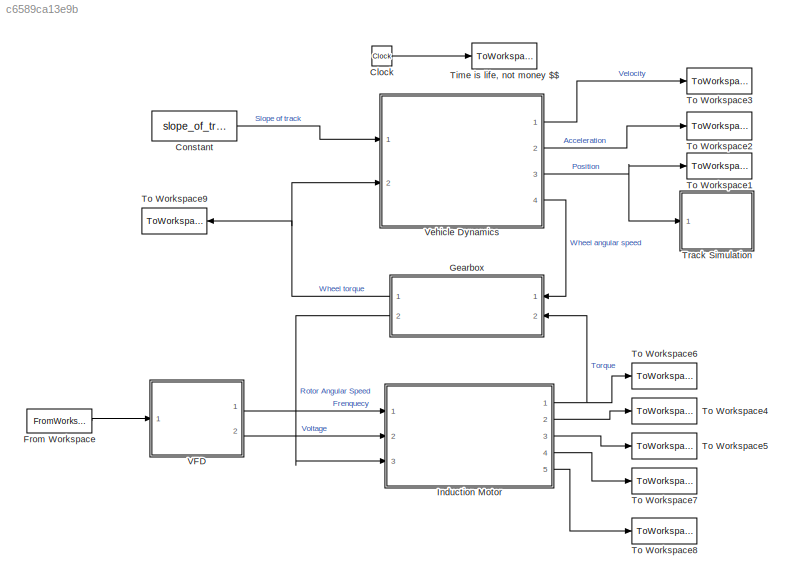
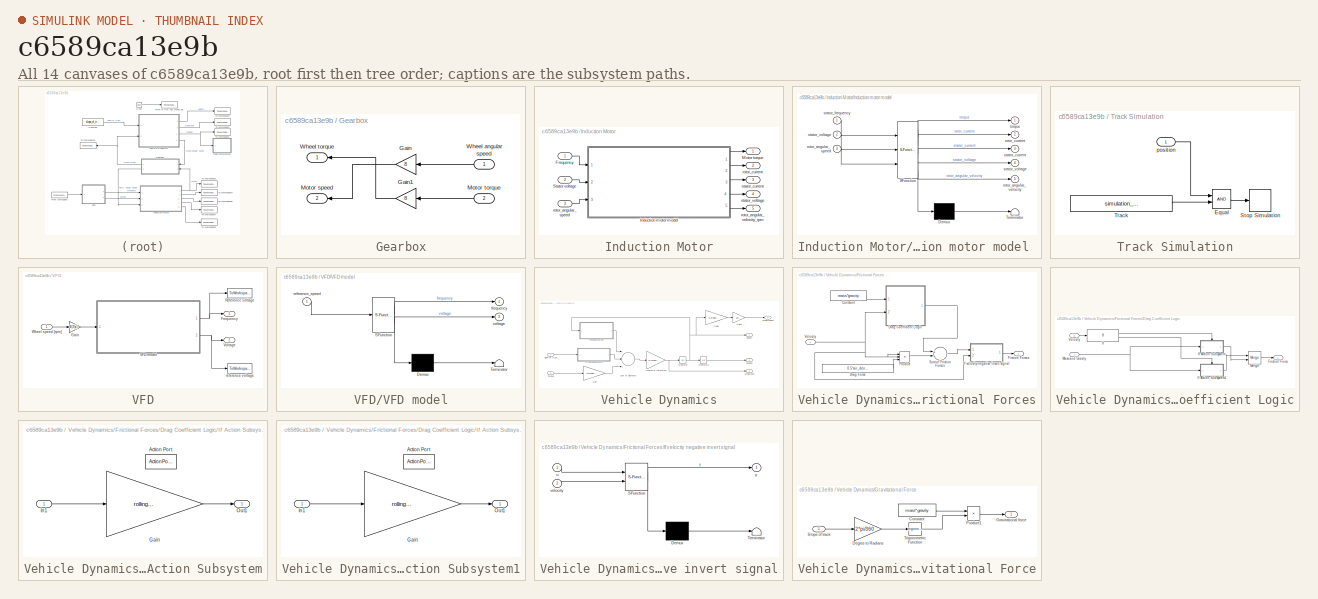
[diagram: thumbnail index - all 14 canvases of the model, root first then tree order]
MODEL slx_c6589ca13e9b
KIND model
CONFIG AbsTol = auto
CONFIG EnableMultiTasking = off
CONFIG FixedStep = auto
CONFIG MaxStep = 1e-4
CONFIG MinStep = auto
CONFIG RelTol = 1e-4
CONFIG SampleTimeConstraint = Unconstrained
CONFIG Solver = ode23t
CONFIG SolverName = ode23t
CONFIG StartTime = 0.0
CONFIG StopTime = 100
BLOCK [Clock] Clock
BLOCK [Constant] Constant
  Value = slope_of_track
BLOCK [FromWorkspace] From Workspace
  SampleTime = 0
  VariableName = reference_speed
  ZeroCross = on
BLOCK [SubSystem] Gearbox
  Ports = [2, 2]
  RequestExecContextInheritance = off
BLOCK [Gain] Gearbox/Gain
  Gain = 8
  OutDataTypeStr = Inherit: Inherit via internal rule
  ParamDataTypeStr = Inherit: Inherit via internal rule
  SaturateOnIntegerOverflow = off
BLOCK [Gain] Gearbox/Gain1
  Gain = 8
  OutDataTypeStr = Inherit: Inherit via internal rule
  ParamDataTypeStr = Inherit: Inherit via internal rule
  SaturateOnIntegerOverflow = off
BLOCK [Outport] Gearbox/Motor speed
  IconDisplay = Port number
  Port = 2
BLOCK [Inport] Gearbox/Motor torque
  IconDisplay = Port number
  Port = 2
BLOCK [Inport] Gearbox/Wheel angular speed
  IconDisplay = Port number
BLOCK [Outport] Gearbox/Wheel torque 
  IconDisplay = Port number
BLOCK [SubSystem] Induction Motor
  Ports = [3, 5]
  RequestExecContextInheritance = off
BLOCK [Inport] Induction Motor/Frequency 
  IconDisplay = Port number
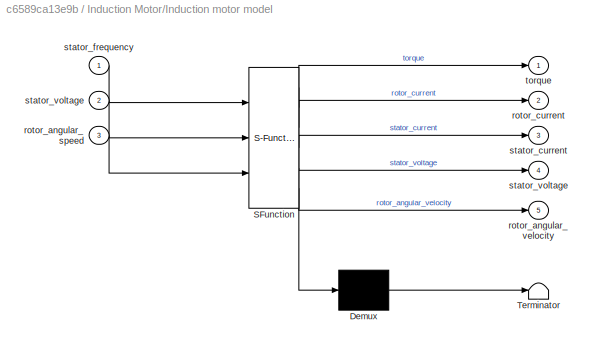
BLOCK [SubSystem] Induction Motor/Induction motor model 
  ErrorFcn = Stateflow.Translate.translate
  PermitHierarchicalResolution = ExplicitOnly
  Ports = [3, 5]
  RequestExecContextInheritance = off
  SFBlockType = MATLAB Function
  TreatAsAtomicUnit = on
BLOCK [Demux] Induction Motor/Induction motor model / Demux 
  Outputs = 1
  Ports = [1, 1]
BLOCK [S-Function] Induction Motor/Induction motor model / SFunction 
  EnableBusSupport = on
  FunctionName = sf_sfun
  PortCounts = [3 6]
  Ports = [3, 6]
  SFcnIsStateOwnerBlock = off
  SFunctionDeploymentMode = off
  Tag = Stateflow S-Function 2
BLOCK [Terminator] Induction Motor/Induction motor model / Terminator 
BLOCK [Inport] Induction Motor/Induction motor model /rotor_angular_speed
  IconDisplay = Port number
  Port = 3
BLOCK [Outport] Induction Motor/Induction motor model /rotor_angular_velocity
  IconDisplay = Port number
  Port = 5
BLOCK [Outport] Induction Motor/Induction motor model /rotor_current
  IconDisplay = Port number
  Port = 2
BLOCK [Outport] Induction Motor/Induction motor model /stator_current
  IconDisplay = Port number
  Port = 3
BLOCK [Inport] Induction Motor/Induction motor model /stator_frequency
  IconDisplay = Port number
BLOCK [Outport] Induction Motor/Induction motor model /stator_voltage
  IconDisplay = Port number
  Port = 4
BLOCK [Inport] Induction Motor/Induction motor model /stator_voltage 
  IconDisplay = Port number
  Port = 2
BLOCK [Outport] Induction Motor/Induction motor model /torque
  IconDisplay = Port number
BLOCK [Outport] Induction Motor/Motor torque
  IconDisplay = Port number
BLOCK [Inport] Induction Motor/Stator voltage 
  IconDisplay = Port number
  Port = 2
BLOCK [Inport] Induction Motor/rotor_angular_speed 
  IconDisplay = Port number
  Port = 3
BLOCK [Outport] Induction Motor/rotor_angular_velocity_rpm
  IconDisplay = Port number
  Port = 5
BLOCK [Outport] Induction Motor/rotor_current
  IconDisplay = Port number
  Port = 2
BLOCK [Outport] Induction Motor/stator_current
  IconDisplay = Port number
  Port = 3
BLOCK [Outport] Induction Motor/stator_voltage
  IconDisplay = Port number
  Port = 4
BLOCK [ToWorkspace] Time is life, not money $$
  FixptAsFi = on
  MaxDataPoints = inf
  Ports = [1]
  SampleTime = -1
  VariableName = time
BLOCK [ToWorkspace] To Workspace1
  FixptAsFi = on
  MaxDataPoints = inf
  Ports = [1]
  SampleTime = -1
  VariableName = position
BLOCK [ToWorkspace] To Workspace2
  FixptAsFi = on
  MaxDataPoints = inf
  Ports = [1]
  SampleTime = -1
  VariableName = acceleration
BLOCK [ToWorkspace] To Workspace3
  FixptAsFi = on
  MaxDataPoints = inf
  Ports = [1]
  SampleTime = -1
  VariableName = velocity
BLOCK [ToWorkspace] To Workspace4
  FixptAsFi = on
  MaxDataPoints = inf
  Ports = [1]
  SampleTime = -1
  VariableName = rotor_current
BLOCK [ToWorkspace] To Workspace5
  FixptAsFi = on
  MaxDataPoints = inf
  Ports = [1]
  SampleTime = -1
  VariableName = stator_current
BLOCK [ToWorkspace] To Workspace6
  FixptAsFi = on
  MaxDataPoints = inf
  Ports = [1]
  SampleTime = -1
  VariableName = motor_torque
BLOCK [ToWorkspace] To Workspace7
  FixptAsFi = on
  MaxDataPoints = inf
  Ports = [1]
  SampleTime = -1
  VariableName = stator_voltage
BLOCK [ToWorkspace] To Workspace8
  FixptAsFi = on
  MaxDataPoints = inf
  Ports = [1]
  SampleTime = -1
  VariableName = rotor_angular_velocity
BLOCK [ToWorkspace] To Workspace9
  FixptAsFi = on
  MaxDataPoints = inf
  Ports = [1]
  SampleTime = -1
  VariableName = wheel_torque
BLOCK [SubSystem] Track Simulation
  Ports = [1]
  RequestExecContextInheritance = off
BLOCK [RelationalOperator] Track Simulation/Equal
  InputSameDT = off
  OutDataTypeStr = boolean
  Ports = [2, 1]
  RndMeth = Simplest
BLOCK [Stop] Track Simulation/Stop Simulation
BLOCK [Constant] Track Simulation/Track 
  Value = simulation_length_track
BLOCK [Inport] Track Simulation/position
  IconDisplay = Port number
BLOCK [SubSystem] VFD
  Ports = [1, 2]
  RequestExecContextInheritance = off
BLOCK [Outport] VFD/Frequency
  IconDisplay = Port number
BLOCK [Gain] VFD/Gain
  Gain = 8/(2*pi)
  OutDataTypeStr = Inherit: Inherit via internal rule
  ParamDataTypeStr = Inherit: Inherit via internal rule
  SaturateOnIntegerOverflow = off
BLOCK [ToWorkspace] VFD/Reference voltage
  FixptAsFi = on
  MaxDataPoints = inf
  Ports = [1]
  SampleTime = -1
  VariableName = reference_frequency
BLOCK [SubSystem] VFD/VFD model
  ErrorFcn = Stateflow.Translate.translate
  PermitHierarchicalResolution = ExplicitOnly
  Ports = [1, 2]
  RequestExecContextInheritance = off
  SFBlockType = MATLAB Function
  TreatAsAtomicUnit = on
BLOCK [Demux] VFD/VFD model/ Demux 
  Outputs = 1
  Ports = [1, 1]
BLOCK [S-Function] VFD/VFD model/ SFunction 
  EnableBusSupport = on
  FunctionName = sf_sfun
  PortCounts = [1 3]
  Ports = [1, 3]
  SFcnIsStateOwnerBlock = off
  SFunctionDeploymentMode = off
  Tag = Stateflow S-Function 1
BLOCK [Terminator] VFD/VFD model/ Terminator 
BLOCK [Outport] VFD/VFD model/frequency
  IconDisplay = Port number
BLOCK [Inport] VFD/VFD model/reference_speed
  IconDisplay = Port number
BLOCK [Outport] VFD/VFD model/voltage
  IconDisplay = Port number
  Port = 2
BLOCK [Outport] VFD/Voltage
  IconDisplay = Port number
  Port = 2
BLOCK [Inport] VFD/Wheel speed [rpm]
  IconDisplay = Port number
BLOCK [ToWorkspace] VFD/reference voltage
  FixptAsFi = on
  MaxDataPoints = inf
  Ports = [1]
  SampleTime = -1
  VariableName = reference_voltage
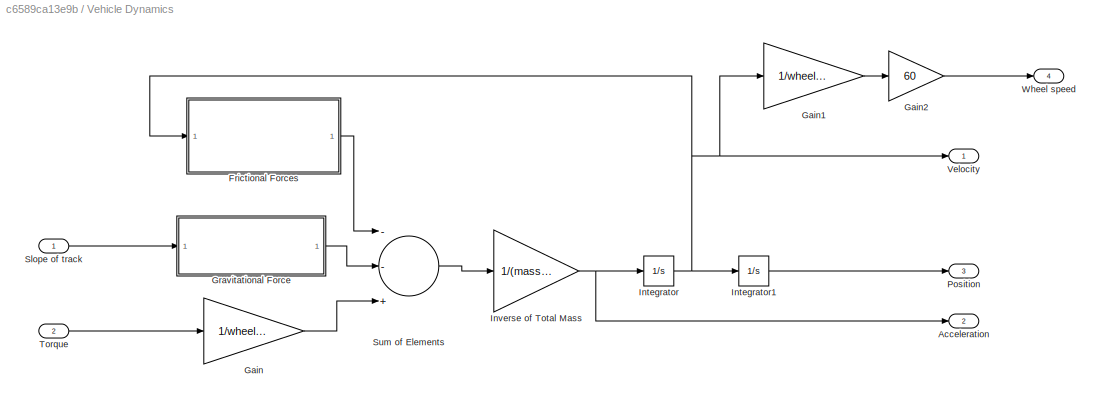
BLOCK [SubSystem] Vehicle Dynamics
  Ports = [2, 4]
  RequestExecContextInheritance = off
BLOCK [Outport] Vehicle Dynamics/Acceleration
  IconDisplay = Port number
  Port = 2
BLOCK [SubSystem] Vehicle Dynamics/Frictional Forces
  Ports = [1, 1]
  RequestExecContextInheritance = off
BLOCK [Constant] Vehicle Dynamics/Frictional Forces/Constant
  Value = mass*gravity
BLOCK [SubSystem] Vehicle Dynamics/Frictional Forces/Drag Coefficient Logic
  Ports = [2, 1]
  RequestExecContextInheritance = off
BLOCK [Outport] Vehicle Dynamics/Frictional Forces/Drag Coefficient Logic/Friction Force
  IconDisplay = Port number
BLOCK [If] Vehicle Dynamics/Frictional Forces/Drag Coefficient Logic/If
  IfExpression = u1 > 0.1
  Ports = [1, 2]
BLOCK [SubSystem] Vehicle Dynamics/Frictional Forces/Drag Coefficient Logic/If Action Subsystem
  Ports = [1, 1, 0, 0, 0, 0, 0, 1]
  RequestExecContextInheritance = off
  TreatAsAtomicUnit = on
BLOCK [ActionPort] Vehicle Dynamics/Frictional Forces/Drag Coefficient Logic/If Action Subsystem/Action Port
  ActionPortLabel = if(u1 > 0.1)
BLOCK [Gain] Vehicle Dynamics/Frictional Forces/Drag Coefficient Logic/If Action Subsystem/Gain
  Gain = rolling_resistance_coefficient_1
  OutDataTypeStr = Inherit: Inherit via internal rule
  ParamDataTypeStr = Inherit: Inherit via internal rule
  SaturateOnIntegerOverflow = off
BLOCK [Inport] Vehicle Dynamics/Frictional Forces/Drag Coefficient Logic/If Action Subsystem/In1
  IconDisplay = Port number
BLOCK [Outport] Vehicle Dynamics/Frictional Forces/Drag Coefficient Logic/If Action Subsystem/Out1
  IconDisplay = Port number
BLOCK [SubSystem] Vehicle Dynamics/Frictional Forces/Drag Coefficient Logic/If Action Subsystem1
  Ports = [1, 1, 0, 0, 0, 0, 0, 1]
  RequestExecContextInheritance = off
  TreatAsAtomicUnit = on
BLOCK [ActionPort] Vehicle Dynamics/Frictional Forces/Drag Coefficient Logic/If Action Subsystem1/Action Port
  ActionPortLabel = else
BLOCK [Gain] Vehicle Dynamics/Frictional Forces/Drag Coefficient Logic/If Action Subsystem1/Gain
  Gain = rolling_resistance_coefficient_0
  OutDataTypeStr = Inherit: Inherit via internal rule
  ParamDataTypeStr = Inherit: Inherit via internal rule
  SaturateOnIntegerOverflow = off
BLOCK [Inport] Vehicle Dynamics/Frictional Forces/Drag Coefficient Logic/If Action Subsystem1/In1
  IconDisplay = Port number
BLOCK [Outport] Vehicle Dynamics/Frictional Forces/Drag Coefficient Logic/If Action Subsystem1/Out1
  IconDisplay = Port number
BLOCK [Inport] Vehicle Dynamics/Frictional Forces/Drag Coefficient Logic/Mass and Gravity 
  IconDisplay = Port number
BLOCK [Merge] Vehicle Dynamics/Frictional Forces/Drag Coefficient Logic/Merge
  Ports = [2, 1]
BLOCK [Inport] Vehicle Dynamics/Frictional Forces/Drag Coefficient Logic/Velocity
  IconDisplay = Port number
  Port = 2
BLOCK [Constant] Vehicle Dynamics/Frictional Forces/Drag Force
  Value = 0.5*air_density*surface_area*drag_coefficient
BLOCK [Outport] Vehicle Dynamics/Frictional Forces/Firction Forces
  IconDisplay = Port number
BLOCK [SubSystem] Vehicle Dynamics/Frictional Forces/If velocity negative invert signal
  ErrorFcn = Stateflow.Translate.translate
  PermitHierarchicalResolution = ExplicitOnly
  Ports = [2, 1]
  RequestExecContextInheritance = off
  SFBlockType = MATLAB Function
  TreatAsAtomicUnit = on
BLOCK [Demux] Vehicle Dynamics/Frictional Forces/If velocity negative invert signal/ Demux 
  Outputs = 1
  Ports = [1, 1]
BLOCK [S-Function] Vehicle Dynamics/Frictional Forces/If velocity negative invert signal/ SFunction 
  EnableBusSupport = on
  FunctionName = sf_sfun
  PortCounts = [2 2]
  Ports = [2, 2]
  SFcnIsStateOwnerBlock = off
  SFunctionDeploymentMode = off
  Tag = Stateflow S-Function 3
BLOCK [Terminator] Vehicle Dynamics/Frictional Forces/If velocity negative invert signal/ Terminator 
BLOCK [Inport] Vehicle Dynamics/Frictional Forces/If velocity negative invert signal/u
  IconDisplay = Port number
BLOCK [Inport] Vehicle Dynamics/Frictional Forces/If velocity negative invert signal/velocity
  IconDisplay = Port number
  Port = 2
BLOCK [Outport] Vehicle Dynamics/Frictional Forces/If velocity negative invert signal/y
  IconDisplay = Port number
BLOCK [Product] Vehicle Dynamics/Frictional Forces/Product
  InputSameDT = off
  Inputs = 3
  OutDataTypeStr = Inherit: Inherit via internal rule
  Ports = [3, 1]
  RndMeth = Floor
  SaturateOnIntegerOverflow = off
BLOCK [Sum] Vehicle Dynamics/Frictional Forces/Sum of Friction Forces
  InputSameDT = off
  OutDataTypeStr = Inherit: Inherit via internal rule
  Ports = [2, 1]
  SaturateOnIntegerOverflow = off
BLOCK [Inport] Vehicle Dynamics/Frictional Forces/Velocity
  IconDisplay = Port number
BLOCK [Gain] Vehicle Dynamics/Gain
  Gain = 1/wheel_radius
  OutDataTypeStr = Inherit: Inherit via internal rule
  ParamDataTypeStr = Inherit: Inherit via internal rule
  SaturateOnIntegerOverflow = off
BLOCK [Gain] Vehicle Dynamics/Gain1
  Gain = 1/wheel_radius
  OutDataTypeStr = Inherit: Inherit via internal rule
  ParamDataTypeStr = Inherit: Inherit via internal rule
  SaturateOnIntegerOverflow = off
BLOCK [Gain] Vehicle Dynamics/Gain2
  Gain = 60
  OutDataTypeStr = Inherit: Inherit via internal rule
  ParamDataTypeStr = Inherit: Inherit via internal rule
  SaturateOnIntegerOverflow = off
BLOCK [SubSystem] Vehicle Dynamics/Gravitational Force
  Ports = [1, 1]
  RequestExecContextInheritance = off
BLOCK [Constant] Vehicle Dynamics/Gravitational Force/Constant
  Value = mass*gravity
BLOCK [Gain] Vehicle Dynamics/Gravitational Force/Degree to Radians
  Gain = 2*pi/360
  OutDataTypeStr = Inherit: Inherit via internal rule
  ParamDataTypeStr = Inherit: Inherit via internal rule
  SaturateOnIntegerOverflow = off
BLOCK [Outport] Vehicle Dynamics/Gravitational Force/Gravitational force
  IconDisplay = Port number
BLOCK [Product] Vehicle Dynamics/Gravitational Force/Product1
  InputSameDT = off
  OutDataTypeStr = Inherit: Inherit via internal rule
  Ports = [2, 1]
  RndMeth = Floor
  SaturateOnIntegerOverflow = off
BLOCK [Inport] Vehicle Dynamics/Gravitational Force/Slope of track
  IconDisplay = Port number
BLOCK [Trigonometry] Vehicle Dynamics/Gravitational Force/Trigonometric Function
  Ports = [1, 1]
BLOCK [Integrator] Vehicle Dynamics/Integrator
  Ports = [1, 1]
BLOCK [Integrator] Vehicle Dynamics/Integrator1
  Ports = [1, 1]
BLOCK [Gain] Vehicle Dynamics/Inverse of Total Mass
  Gain = 1/(mass+equ_mass_of_rot_parts)
  OutDataTypeStr = Inherit: Inherit via internal rule
  ParamDataTypeStr = Inherit: Inherit via internal rule
  SaturateOnIntegerOverflow = off
BLOCK [Outport] Vehicle Dynamics/Position
  IconDisplay = Port number
  Port = 3
BLOCK [Inport] Vehicle Dynamics/Slope of track 
  IconDisplay = Port number
BLOCK [Sum] Vehicle Dynamics/Sum of Elements
  InputSameDT = off
  Inputs = --+
  OutDataTypeStr = Inherit: Inherit via internal rule
  Ports = [3, 1]
  SaturateOnIntegerOverflow = off
BLOCK [Inport] Vehicle Dynamics/Torque
  IconDisplay = Port number
  Port = 2
BLOCK [Outport] Vehicle Dynamics/Velocity
  IconDisplay = Port number
BLOCK [Outport] Vehicle Dynamics/Wheel speed
  IconDisplay = Port number
  Port = 4
LINE Clock:1 -> Time is life, not money $$:1
LINE Constant:1 -> Vehicle Dynamics:1
LINE From Workspace:1 -> VFD:1
LINE Gearbox/Gain1:1 -> Gearbox/Wheel torque :1
LINE Gearbox/Gain:1 -> Gearbox/Motor speed:1
LINE Gearbox/Motor torque:1 -> Gearbox/Gain1:1
LINE Gearbox/Wheel angular speed:1 -> Gearbox/Gain:1
NET Gearbox:1 -> To Workspace9:1, Vehicle Dynamics:2
LINE Gearbox:2 -> Induction Motor:3
LINE Induction Motor/Frequency :1 -> Induction Motor/Induction motor model :1
LINE Induction Motor/Induction motor model :1 -> Induction Motor/Motor torque:1
LINE Induction Motor/Induction motor model :2 -> Induction Motor/rotor_current:1
LINE Induction Motor/Induction motor model :3 -> Induction Motor/stator_current:1
LINE Induction Motor/Induction motor model :4 -> Induction Motor/stator_voltage:1
LINE Induction Motor/Induction motor model :5 -> Induction Motor/rotor_angular_velocity_rpm:1
LINE Induction Motor/Stator voltage :1 -> Induction Motor/Induction motor model :2
LINE Induction Motor/rotor_angular_speed :1 -> Induction Motor/Induction motor model :3
NET Induction Motor:1 -> Gearbox:2, To Workspace6:1
LINE Induction Motor:2 -> To Workspace4:1
LINE Induction Motor:3 -> To Workspace5:1
LINE Induction Motor:4 -> To Workspace7:1
LINE Induction Motor:5 -> To Workspace8:1
LINE Track Simulation/Equal:1 -> Track Simulation/Stop Simulation:1
LINE Track Simulation/Track :1 -> Track Simulation/Equal:2
LINE Track Simulation/position:1 -> Track Simulation/Equal:1
LINE VFD/Gain:1 -> VFD/VFD model:1
NET VFD/VFD model:1 -> VFD/Frequency:1, VFD/Reference voltage:1
NET VFD/VFD model:2 -> VFD/Voltage:1, VFD/reference voltage:1
LINE VFD/Wheel speed [rpm]:1 -> VFD/Gain:1
LINE VFD:1 -> Induction Motor:1
LINE VFD:2 -> Induction Motor:2
LINE Vehicle Dynamics/Frictional Forces/Constant:1 -> Vehicle Dynamics/Frictional Forces/Drag Coefficient Logic:1
LINE Vehicle Dynamics/Frictional Forces/Drag Coefficient Logic/If Action Subsystem/Gain:1 -> Vehicle Dynamics/Frictional Forces/Drag Coefficient Logic/If Action Subsystem/Out1:1
LINE Vehicle Dynamics/Frictional Forces/Drag Coefficient Logic/If Action Subsystem/In1:1 -> Vehicle Dynamics/Frictional Forces/Drag Coefficient Logic/If Action Subsystem/Gain:1
LINE Vehicle Dynamics/Frictional Forces/Drag Coefficient Logic/If Action Subsystem1/Gain:1 -> Vehicle Dynamics/Frictional Forces/Drag Coefficient Logic/If Action Subsystem1/Out1:1
LINE Vehicle Dynamics/Frictional Forces/Drag Coefficient Logic/If Action Subsystem1/In1:1 -> Vehicle Dynamics/Frictional Forces/Drag Coefficient Logic/If Action Subsystem1/Gain:1
LINE Vehicle Dynamics/Frictional Forces/Drag Coefficient Logic/If Action Subsystem1:1 -> Vehicle Dynamics/Frictional Forces/Drag Coefficient Logic/Merge:1
LINE Vehicle Dynamics/Frictional Forces/Drag Coefficient Logic/If Action Subsystem:1 -> Vehicle Dynamics/Frictional Forces/Drag Coefficient Logic/Merge:2
LINE Vehicle Dynamics/Frictional Forces/Drag Coefficient Logic/If:1 -> Vehicle Dynamics/Frictional Forces/Drag Coefficient Logic/If Action Subsystem:ifaction
LINE Vehicle Dynamics/Frictional Forces/Drag Coefficient Logic/If:2 -> Vehicle Dynamics/Frictional Forces/Drag Coefficient Logic/If Action Subsystem1:ifaction
NET Vehicle Dynamics/Frictional Forces/Drag Coefficient Logic/Mass and Gravity :1 -> Vehicle Dynamics/Frictional Forces/Drag Coefficient Logic/If Action Subsystem1:1, Vehicle Dynamics/Frictional Forces/Drag Coefficient Logic/If Action Subsystem:1
LINE Vehicle Dynamics/Frictional Forces/Drag Coefficient Logic/Merge:1 -> Vehicle Dynamics/Frictional Forces/Drag Coefficient Logic/Friction Force:1
LINE Vehicle Dynamics/Frictional Forces/Drag Coefficient Logic/Velocity:1 -> Vehicle Dynamics/Frictional Forces/Drag Coefficient Logic/If:1
LINE Vehicle Dynamics/Frictional Forces/Drag Coefficient Logic:1 -> Vehicle Dynamics/Frictional Forces/Sum of Friction Forces:1
LINE Vehicle Dynamics/Frictional Forces/Drag Force:1 -> Vehicle Dynamics/Frictional Forces/Product:3
LINE Vehicle Dynamics/Frictional Forces/If velocity negative invert signal:1 -> Vehicle Dynamics/Frictional Forces/Firction Forces:1
LINE Vehicle Dynamics/Frictional Forces/Product:1 -> Vehicle Dynamics/Frictional Forces/Sum of Friction Forces:2
LINE Vehicle Dynamics/Frictional Forces/Sum of Friction Forces:1 -> Vehicle Dynamics/Frictional Forces/If velocity negative invert signal:1
NET Vehicle Dynamics/Frictional Forces/Velocity:1 -> Vehicle Dynamics/Frictional Forces/Drag Coefficient Logic:2, Vehicle Dynamics/Frictional Forces/If velocity negative invert signal:2, Vehicle Dynamics/Frictional Forces/Product:1, Vehicle Dynamics/Frictional Forces/Product:2
LINE Vehicle Dynamics/Frictional Forces:1 -> Vehicle Dynamics/Sum of Elements:1
LINE Vehicle Dynamics/Gain1:1 -> Vehicle Dynamics/Gain2:1
LINE Vehicle Dynamics/Gain2:1 -> Vehicle Dynamics/Wheel speed:1
LINE Vehicle Dynamics/Gain:1 -> Vehicle Dynamics/Sum of Elements:3
LINE Vehicle Dynamics/Gravitational Force/Constant:1 -> Vehicle Dynamics/Gravitational Force/Product1:1
LINE Vehicle Dynamics/Gravitational Force/Degree to Radians:1 -> Vehicle Dynamics/Gravitational Force/Trigonometric Function:1
LINE Vehicle Dynamics/Gravitational Force/Product1:1 -> Vehicle Dynamics/Gravitational Force/Gravitational force:1
LINE Vehicle Dynamics/Gravitational Force/Slope of track:1 -> Vehicle Dynamics/Gravitational Force/Degree to Radians:1
LINE Vehicle Dynamics/Gravitational Force/Trigonometric Function:1 -> Vehicle Dynamics/Gravitational Force/Product1:2
LINE Vehicle Dynamics/Gravitational Force:1 -> Vehicle Dynamics/Sum of Elements:2
LINE Vehicle Dynamics/Integrator1:1 -> Vehicle Dynamics/Position:1
NET Vehicle Dynamics/Integrator:1 -> Vehicle Dynamics/Frictional Forces:1, Vehicle Dynamics/Gain1:1, Vehicle Dynamics/Integrator1:1, Vehicle Dynamics/Velocity:1
NET Vehicle Dynamics/Inverse of Total Mass:1 -> Vehicle Dynamics/Acceleration:1, Vehicle Dynamics/Integrator:1
LINE Vehicle Dynamics/Slope of track :1 -> Vehicle Dynamics/Gravitational Force:1
LINE Vehicle Dynamics/Sum of Elements:1 -> Vehicle Dynamics/Inverse of Total Mass:1
LINE Vehicle Dynamics/Torque:1 -> Vehicle Dynamics/Gain:1
LINE Vehicle Dynamics:1 -> To Workspace3:1
LINE Vehicle Dynamics:2 -> To Workspace2:1
NET Vehicle Dynamics:3 -> To Workspace1:1, Track Simulation:1
LINE Vehicle Dynamics:4 -> Gearbox:1
note: NET lines group one-source signal fan-out (src -> all destinations, sorted); 1:1 wires keep LINE
CHART VFD/VFD model states=1 transitions=1
  STATE_LABEL 'eML_blk_kernel()'
  STATE_LABEL 'SCRIPT:\nfunction [frequency, voltage] = fcn(reference_speed)\nfrequency = (reference_speed*2)/60;\nvoltage = frequency;\nend\n'
CHART Induction Motor/Induction motor model
 states=1 transitions=1
  STATE_LABEL 'eML_blk_kernel()'
  STATE_LABEL 'SCRIPT:\nfunction [torque, rotor_current, stator_current, stator_voltage, rotor_angular_velocity] = fcn(stator_frequency, stator_voltage, rotor_angular_speed)\n    % slip\n    if (rotor_angular_speed >= 0)\n        slip = (60*stator_frequency/2 - rotor_angular_speed)/(60*stator_frequency/2); %rpm\n    else\n        slip = 1;\n    end\n    % Constant specs\n    stator_resistance = 8.56*1e-3;\n    stator_leak...<+1615ch>'
CHART Vehicle Dynamics/Frictional Forces/If velocity negative invert signal states=1 transitions=1
  STATE_LABEL 'eML_blk_kernel()'
  STATE_LABEL 'SCRIPT:\nfunction y = fcn(u, velocity)\nif (velocity < 0 )\n    y = - u;\nelse\n    y = u;\nend\nend\n'
